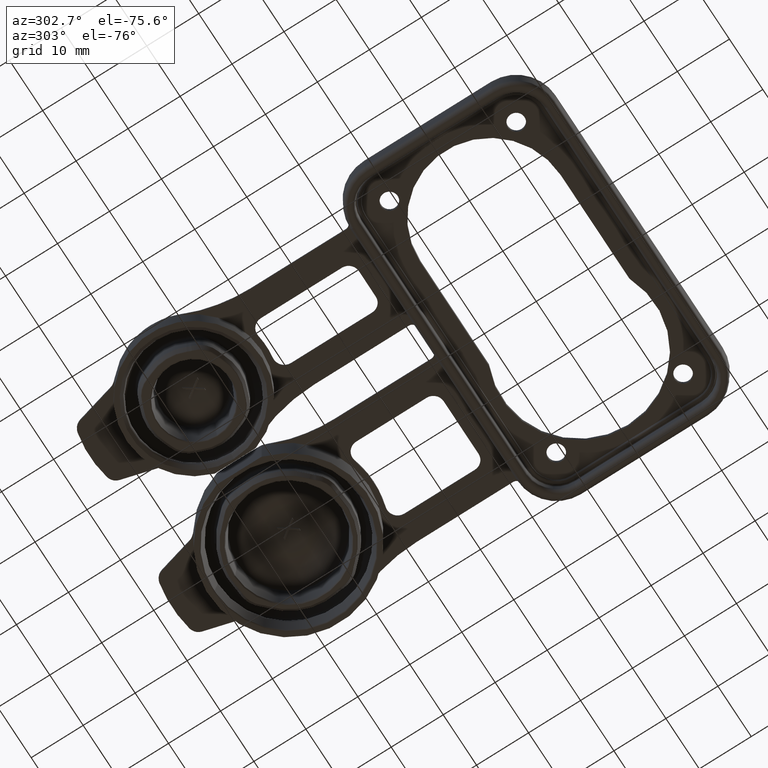
[diagram: clean part render]
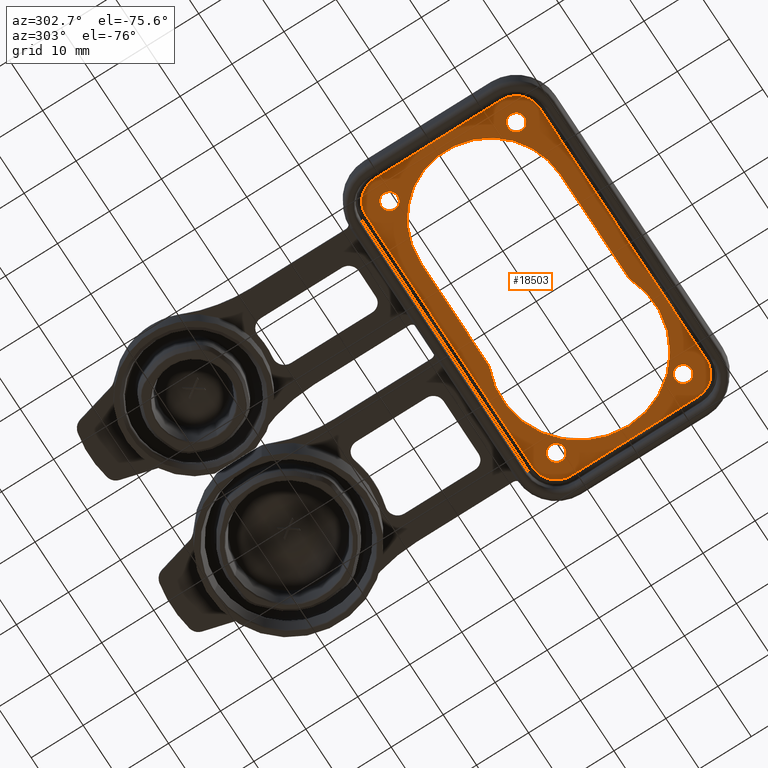
[diagram: same view with one face highlighted and labeled with its STEP entity id]
A machine part, auxiliary view. The second image highlights one B-rep face of the part: STEP entity #18503.
In plain terms, the highlighted planar face has unit normal (0, 0, 1).
Its self-contained STEP definition (entity closure, byte-faithful):
#37=CARTESIAN_POINT('',(-2.5E1,1.22E1,0.E0));
#38=DIRECTION('',(0.E0,0.E0,-1.E0));
#39=DIRECTION('',(-1.E0,0.E0,0.E0));
#40=AXIS2_PLACEMENT_3D('',#37,#38,#39);
#42=CARTESIAN_POINT('',(-2.5E1,1.22E1,0.E0));
#43=DIRECTION('',(0.E0,0.E0,-1.E0));
#44=DIRECTION('',(1.E0,0.E0,0.E0));
#45=AXIS2_PLACEMENT_3D('',#42,#43,#44);
#47=CARTESIAN_POINT('',(-2.5E1,-1.22E1,0.E0));
#48=DIRECTION('',(0.E0,0.E0,-1.E0));
#49=DIRECTION('',(-1.E0,0.E0,0.E0));
#50=AXIS2_PLACEMENT_3D('',#47,#48,#49);
#52=CARTESIAN_POINT('',(-2.5E1,-1.22E1,0.E0));
#53=DIRECTION('',(0.E0,0.E0,-1.E0));
#54=DIRECTION('',(1.E0,0.E0,0.E0));
#55=AXIS2_PLACEMENT_3D('',#52,#53,#54);
#57=CARTESIAN_POINT('',(2.5E1,1.22E1,0.E0));
#58=DIRECTION('',(0.E0,0.E0,-1.E0));
#59=DIRECTION('',(-1.E0,0.E0,0.E0));
#60=AXIS2_PLACEMENT_3D('',#57,#58,#59);
#62=CARTESIAN_POINT('',(2.5E1,1.22E1,0.E0));
#63=DIRECTION('',(0.E0,0.E0,-1.E0));
#64=DIRECTION('',(1.E0,0.E0,0.E0));
#65=AXIS2_PLACEMENT_3D('',#62,#63,#64);
#67=CARTESIAN_POINT('',(2.5E1,-1.22E1,0.E0));
#68=DIRECTION('',(0.E0,0.E0,-1.E0));
#69=DIRECTION('',(-1.E0,0.E0,0.E0));
#70=AXIS2_PLACEMENT_3D('',#67,#68,#69);
#72=CARTESIAN_POINT('',(2.5E1,-1.22E1,0.E0));
#73=DIRECTION('',(0.E0,0.E0,-1.E0));
#74=DIRECTION('',(1.E0,0.E0,0.E0));
#75=AXIS2_PLACEMENT_3D('',#72,#73,#74);
#77=DIRECTION('',(1.E0,0.E0,0.E0));
#78=VECTOR('',#77,2.055756783800E1);
#79=CARTESIAN_POINT('',(-1.37E1,1.35E1,0.E0));
#80=LINE('',#79,#78);
#81=CARTESIAN_POINT('',(1.28E1,0.E0,0.E0));
#82=DIRECTION('',(0.E0,0.E0,-1.E0));
#83=DIRECTION('',(-4.028767567459E-1,9.152542372881E-1,0.E0));
#84=AXIS2_PLACEMENT_3D('',#81,#82,#83);
#86=DIRECTION('',(-1.E0,0.E0,0.E0));
#87=VECTOR('',#86,2.055756783800E1);
#88=CARTESIAN_POINT('',(6.857567837998E0,-1.35E1,0.E0));
#89=LINE('',#88,#87);
#90=CARTESIAN_POINT('',(-1.37E1,0.E0,0.E0));
#91=DIRECTION('',(0.E0,0.E0,-1.E0));
#92=DIRECTION('',(0.E0,-1.E0,0.E0));
#93=AXIS2_PLACEMENT_3D('',#90,#91,#92);
#95=CARTESIAN_POINT('',(2.5E1,1.22E1,0.E0));
#96=DIRECTION('',(0.E0,0.E0,-1.E0));
#97=DIRECTION('',(0.E0,1.E0,0.E0));
#98=AXIS2_PLACEMENT_3D('',#95,#96,#97);
#100=DIRECTION('',(1.E0,0.E0,0.E0));
#101=VECTOR('',#100,5.E1);
#102=CARTESIAN_POINT('',(-2.5E1,1.67E1,0.E0));
#103=LINE('',#102,#101);
#104=CARTESIAN_POINT('',(-2.5E1,1.22E1,0.E0));
#105=DIRECTION('',(0.E0,0.E0,-1.E0));
#106=DIRECTION('',(-1.E0,0.E0,0.E0));
#107=AXIS2_PLACEMENT_3D('',#104,#105,#106);
#109=DIRECTION('',(0.E0,1.E0,0.E0));
#110=VECTOR('',#109,2.44E1);
#111=CARTESIAN_POINT('',(-2.95E1,-1.22E1,0.E0));
#112=LINE('',#111,#110);
#113=CARTESIAN_POINT('',(-2.5E1,-1.22E1,0.E0));
#114=DIRECTION('',(0.E0,0.E0,-1.E0));
#115=DIRECTION('',(0.E0,-1.E0,0.E0));
#116=AXIS2_PLACEMENT_3D('',#113,#114,#115);
#118=DIRECTION('',(-1.E0,0.E0,0.E0));
#119=VECTOR('',#118,5.E1);
#120=CARTESIAN_POINT('',(2.5E1,-1.67E1,0.E0));
#121=LINE('',#120,#119);
#122=CARTESIAN_POINT('',(2.5E1,-1.22E1,0.E0));
#123=DIRECTION('',(0.E0,0.E0,-1.E0));
#124=DIRECTION('',(1.E0,0.E0,0.E0));
#125=AXIS2_PLACEMENT_3D('',#122,#123,#124);
#127=DIRECTION('',(0.E0,-1.E0,0.E0));
#128=VECTOR('',#127,2.44E1);
#129=CARTESIAN_POINT('',(2.95E1,1.22E1,0.E0));
#130=LINE('',#129,#128);
#15093=CARTESIAN_POINT('',(-2.66E1,1.22E1,0.E0));
#15094=CARTESIAN_POINT('',(-2.34E1,1.22E1,0.E0));
#15095=VERTEX_POINT('',#15093);
#15096=VERTEX_POINT('',#15094);
#15097=CARTESIAN_POINT('',(-2.66E1,-1.22E1,0.E0));
#15098=CARTESIAN_POINT('',(-2.34E1,-1.22E1,0.E0));
#15099=VERTEX_POINT('',#15097);
#15100=VERTEX_POINT('',#15098);
#15101=CARTESIAN_POINT('',(2.34E1,1.22E1,0.E0));
#15102=CARTESIAN_POINT('',(2.66E1,1.22E1,0.E0));
#15103=VERTEX_POINT('',#15101);
#15104=VERTEX_POINT('',#15102);
#15105=CARTESIAN_POINT('',(2.34E1,-1.22E1,0.E0));
#15106=CARTESIAN_POINT('',(2.66E1,-1.22E1,0.E0));
#15107=VERTEX_POINT('',#15105);
#15108=VERTEX_POINT('',#15106);
#15125=CARTESIAN_POINT('',(-1.37E1,1.35E1,0.E0));
#15126=CARTESIAN_POINT('',(6.857567837998E0,1.35E1,0.E0));
#15127=VERTEX_POINT('',#15125);
#15128=VERTEX_POINT('',#15126);
#15129=CARTESIAN_POINT('',(6.857567837998E0,-1.35E1,0.E0));
#15130=CARTESIAN_POINT('',(-1.37E1,-1.35E1,0.E0));
#15131=VERTEX_POINT('',#15129);
#15132=VERTEX_POINT('',#15130);
#15141=CARTESIAN_POINT('',(2.5E1,1.67E1,0.E0));
#15142=CARTESIAN_POINT('',(2.95E1,1.22E1,0.E0));
#15143=VERTEX_POINT('',#15141);
#15144=VERTEX_POINT('',#15142);
#15149=CARTESIAN_POINT('',(2.95E1,-1.22E1,0.E0));
#15150=VERTEX_POINT('',#15149);
#15153=CARTESIAN_POINT('',(2.5E1,-1.67E1,0.E0));
#15154=VERTEX_POINT('',#15153);
#15157=CARTESIAN_POINT('',(-2.5E1,-1.67E1,0.E0));
#15158=VERTEX_POINT('',#15157);
#15161=CARTESIAN_POINT('',(-2.95E1,-1.22E1,0.E0));
#15162=VERTEX_POINT('',#15161);
#15165=CARTESIAN_POINT('',(-2.95E1,1.22E1,0.E0));
#15166=VERTEX_POINT('',#15165);
#15169=CARTESIAN_POINT('',(-2.5E1,1.67E1,0.E0));
#15170=VERTEX_POINT('',#15169);
#18446=CARTESIAN_POINT('',(-1.189587251597E-13,1.410669174716E-13,0.E0));
#18447=DIRECTION('',(0.E0,0.E0,1.E0));
#18448=DIRECTION('',(1.E0,0.E0,0.E0));
#18449=AXIS2_PLACEMENT_3D('',#18446,#18447,#18448);
#18450=PLANE('',#18449);
#18452=ORIENTED_EDGE('',*,*,#18451,.F.);
#18454=ORIENTED_EDGE('',*,*,#18453,.F.);
#18456=ORIENTED_EDGE('',*,*,#18455,.F.);
#18458=ORIENTED_EDGE('',*,*,#18457,.F.);
#18460=ORIENTED_EDGE('',*,*,#18459,.F.);
#18462=ORIENTED_EDGE('',*,*,#18461,.F.);
#18464=ORIENTED_EDGE('',*,*,#18463,.F.);
#18466=ORIENTED_EDGE('',*,*,#18465,.F.);
#18467=EDGE_LOOP('',(#18452,#18454,#18456,#18458,#18460,#18462,#18464,#18466));
#18468=FACE_OUTER_BOUND('',#18467,.F.);
#18470=ORIENTED_EDGE('',*,*,#18469,.T.);
#18472=ORIENTED_EDGE('',*,*,#18471,.T.);
#18473=EDGE_LOOP('',(#18470,#18472));
#18474=FACE_BOUND('',#18473,.F.);
#18476=ORIENTED_EDGE('',*,*,#18475,.T.);
#18478=ORIENTED_EDGE('',*,*,#18477,.T.);
#18479=EDGE_LOOP('',(#18476,#18478));
#18480=FACE_BOUND('',#18479,.F.);
#18482=ORIENTED_EDGE('',*,*,#18481,.T.);
#18484=ORIENTED_EDGE('',*,*,#18483,.T.);
#18485=EDGE_LOOP('',(#18482,#18484));
#18486=FACE_BOUND('',#18485,.F.);
#18488=ORIENTED_EDGE('',*,*,#18487,.T.);
#18490=ORIENTED_EDGE('',*,*,#18489,.T.);
#18491=EDGE_LOOP('',(#18488,#18490));
#18492=FACE_BOUND('',#18491,.F.);
#18494=ORIENTED_EDGE('',*,*,#18493,.T.);
#18496=ORIENTED_EDGE('',*,*,#18495,.T.);
#18498=ORIENTED_EDGE('',*,*,#18497,.T.);
#18500=ORIENTED_EDGE('',*,*,#18499,.T.);
#18501=EDGE_LOOP('',(#18494,#18496,#18498,#18500));
#18502=FACE_BOUND('',#18501,.F.);
#18503=ADVANCED_FACE('',(#18468,#18474,#18480,#18486,#18492,#18502),#18450,.F.);
#41=CIRCLE('',#40,1.6E0);
#46=CIRCLE('',#45,1.6E0);
#51=CIRCLE('',#50,1.6E0);
#56=CIRCLE('',#55,1.6E0);
#61=CIRCLE('',#60,1.6E0);
#66=CIRCLE('',#65,1.6E0);
#71=CIRCLE('',#70,1.6E0);
#76=CIRCLE('',#75,1.6E0);
#85=CIRCLE('',#84,1.475E1);
#94=CIRCLE('',#93,1.35E1);
#99=CIRCLE('',#98,4.5E0);
#108=CIRCLE('',#107,4.5E0);
#117=CIRCLE('',#116,4.5E0);
#126=CIRCLE('',#125,4.5E0);
#18451=EDGE_CURVE('',#15143,#15144,#99,.T.);
#18453=EDGE_CURVE('',#15170,#15143,#103,.T.);
#18455=EDGE_CURVE('',#15166,#15170,#108,.T.);
#18457=EDGE_CURVE('',#15162,#15166,#112,.T.);
#18459=EDGE_CURVE('',#15158,#15162,#117,.T.);
#18461=EDGE_CURVE('',#15154,#15158,#121,.T.);
#18463=EDGE_CURVE('',#15150,#15154,#126,.T.);
#18465=EDGE_CURVE('',#15144,#15150,#130,.T.);
#18469=EDGE_CURVE('',#15095,#15096,#41,.T.);
#18471=EDGE_CURVE('',#15096,#15095,#46,.T.);
#18475=EDGE_CURVE('',#15099,#15100,#51,.T.);
#18477=EDGE_CURVE('',#15100,#15099,#56,.T.);
#18481=EDGE_CURVE('',#15103,#15104,#61,.T.);
#18483=EDGE_CURVE('',#15104,#15103,#66,.T.);
#18487=EDGE_CURVE('',#15107,#15108,#71,.T.);
#18489=EDGE_CURVE('',#15108,#15107,#76,.T.);
#18493=EDGE_CURVE('',#15127,#15128,#80,.T.);
#18495=EDGE_CURVE('',#15128,#15131,#85,.T.);
#18497=EDGE_CURVE('',#15131,#15132,#89,.T.);
#18499=EDGE_CURVE('',#15132,#15127,#94,.T.);